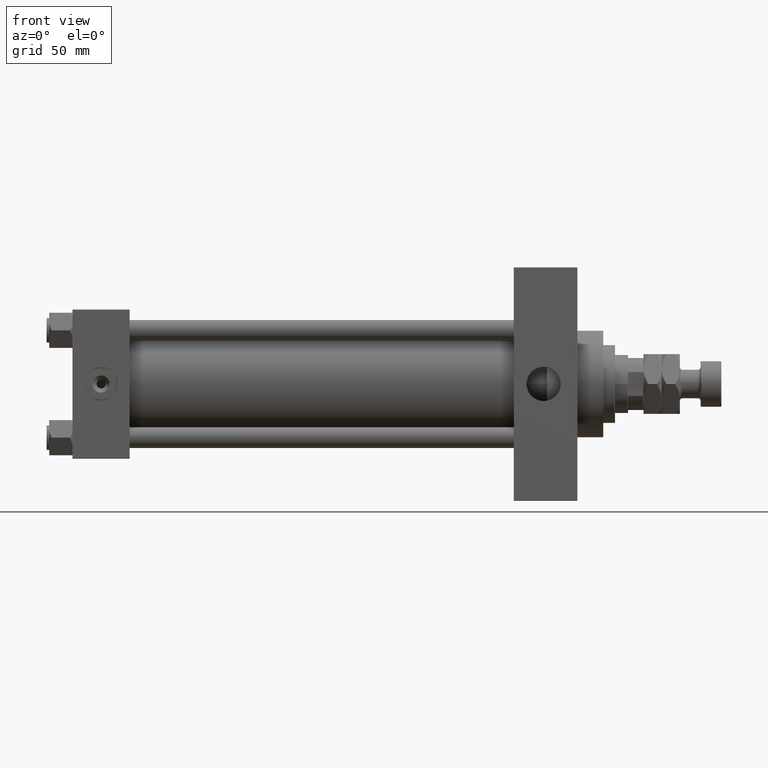
[diagram: clean part render]
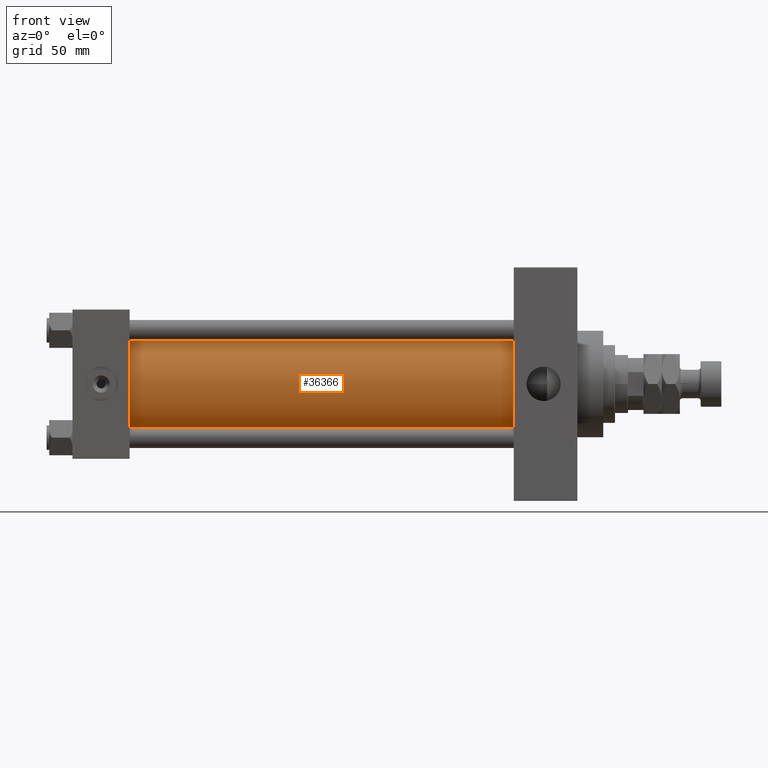
[diagram: same view with one face highlighted and labeled with its STEP entity id]
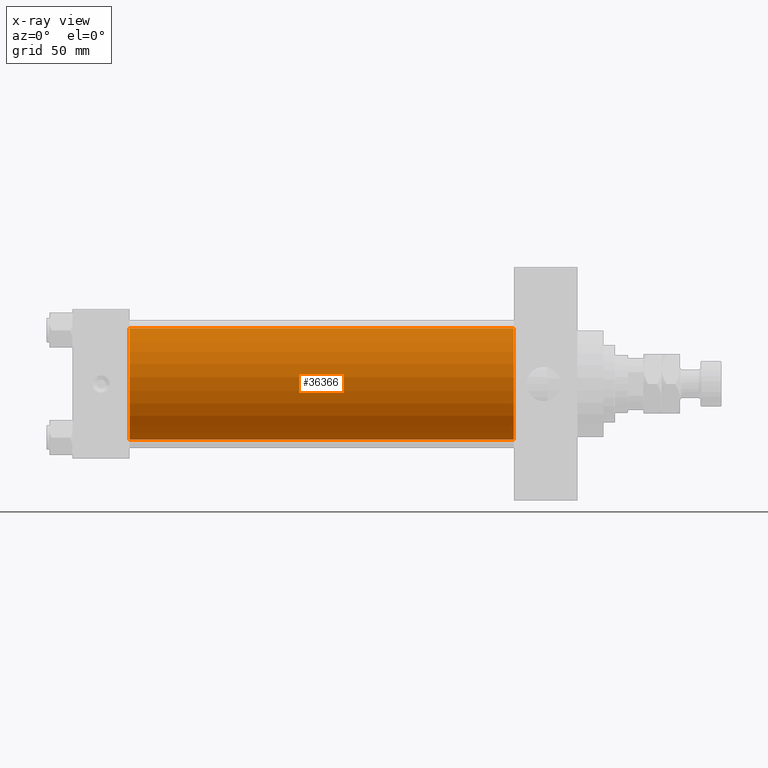
[diagram: x-ray of the same camera — body ghosted, the highlighted face saturated]
A machine part, front view. The second image highlights one B-rep face of the part: STEP entity #36366.
The next image is the same camera in x-ray: the body ghosted, the highlighted face saturated — about 0% of this face is hidden behind the body in this view.
In plain terms, the highlighted cylindrical surface (partial cylindrical patch) has radius 43 mm, axis along (-1, -0, -0).
Its self-contained STEP definition (entity closure, byte-faithful):
#430 = CYLINDRICAL_SURFACE ( 'NONE', #49633, 43.00000000000000000 ) ;
#1452 = FACE_OUTER_BOUND ( 'NONE', #51010, .T. ) ;
#2815 = LINE ( 'NONE', #10102, #4619 ) ;
#3336 = CARTESIAN_POINT ( 'NONE',  ( 43.99999999999998579, -2.602085213965210642E-15, 0.000000000000000000 ) ) ;
#4619 = VECTOR ( 'NONE', #50745, 1000.000000000000000 ) ;
#6507 = ORIENTED_EDGE ( 'NONE', *, *, #34302, .T. ) ;
#6743 = DIRECTION ( 'NONE',  ( 1.000000000000000000, -0.000000000000000000, 0.000000000000000000 ) ) ;
#8504 = DIRECTION ( 'NONE',  ( -1.000000000000000000, -0.000000000000000000, -0.000000000000000000 ) ) ;
#10102 = CARTESIAN_POINT ( 'NONE',  ( 339.9999999999999432, -2.602085213965210642E-15, 43.00000000000000000 ) ) ;
#11857 = CARTESIAN_POINT ( 'NONE',  ( 339.9999999999999432, -2.602085213965210642E-15, 0.000000000000000000 ) ) ;
#12364 = DIRECTION ( 'NONE',  ( 1.000000000000000000, 0.000000000000000000, 0.000000000000000000 ) ) ;
#12390 = DIRECTION ( 'NONE',  ( 0.000000000000000000, 0.000000000000000000, 1.000000000000000000 ) ) ;
#18773 = AXIS2_PLACEMENT_3D ( 'NONE', #3336, #6743, #51015 ) ;
#20068 = EDGE_CURVE ( 'NONE', #44265, #20233, #30276, .T. ) ;
#20233 = VERTEX_POINT ( 'NONE', #30881 ) ;
#20473 = CARTESIAN_POINT ( 'NONE',  ( 339.9999999999999432, -2.602085213965210642E-15, 0.000000000000000000 ) ) ;
#21362 = VERTEX_POINT ( 'NONE', #31671 ) ;
#22687 = VECTOR ( 'NONE', #49626, 1000.000000000000000 ) ;
#23838 = EDGE_CURVE ( 'NONE', #20233, #21362, #25384, .T. ) ;
#24446 = VERTEX_POINT ( 'NONE', #49178 ) ;
#25384 = LINE ( 'NONE', #45456, #22687 ) ;
#27774 = DIRECTION ( 'NONE',  ( 0.000000000000000000, 0.000000000000000000, -1.000000000000000000 ) ) ;
#30276 = CIRCLE ( 'NONE', #46081, 43.00000000000000000 ) ;
#30881 = CARTESIAN_POINT ( 'NONE',  ( 339.9999999999999432, 2.663896022368408223E-15, -43.00000000000000000 ) ) ;
#31316 = EDGE_CURVE ( 'NONE', #24446, #21362, #40407, .T. ) ;
#31671 = CARTESIAN_POINT ( 'NONE',  ( 43.99999999999998579, 2.663896022368408223E-15, -43.00000000000000000 ) ) ;
#34302 = EDGE_CURVE ( 'NONE', #44265, #24446, #2815, .T. ) ;
#36366 = ADVANCED_FACE ( 'NONE', ( #1452 ), #430, .T. ) ;
#38265 = CARTESIAN_POINT ( 'NONE',  ( 339.9999999999999432, -2.602085213965210642E-15, 43.00000000000000000 ) ) ;
#40407 = CIRCLE ( 'NONE', #18773, 43.00000000000000000 ) ;
#41109 = ORIENTED_EDGE ( 'NONE', *, *, #20068, .F. ) ;
#43096 = ORIENTED_EDGE ( 'NONE', *, *, #23838, .F. ) ;
#44265 = VERTEX_POINT ( 'NONE', #38265 ) ;
#44828 = ORIENTED_EDGE ( 'NONE', *, *, #31316, .T. ) ;
#45456 = CARTESIAN_POINT ( 'NONE',  ( 339.9999999999999432, 2.663896022368408223E-15, -43.00000000000000000 ) ) ;
#46081 = AXIS2_PLACEMENT_3D ( 'NONE', #11857, #12364, #27774 ) ;
#49178 = CARTESIAN_POINT ( 'NONE',  ( 43.99999999999998579, -2.602085213965210642E-15, 43.00000000000000000 ) ) ;
#49626 = DIRECTION ( 'NONE',  ( -1.000000000000000000, -0.000000000000000000, -0.000000000000000000 ) ) ;
#49633 = AXIS2_PLACEMENT_3D ( 'NONE', #20473, #8504, #12390 ) ;
#50745 = DIRECTION ( 'NONE',  ( -1.000000000000000000, -0.000000000000000000, -0.000000000000000000 ) ) ;
#51010 = EDGE_LOOP ( 'NONE', ( #43096, #41109, #6507, #44828 ) ) ;
#51015 = DIRECTION ( 'NONE',  ( 0.000000000000000000, 0.000000000000000000, 1.000000000000000000 ) ) ;